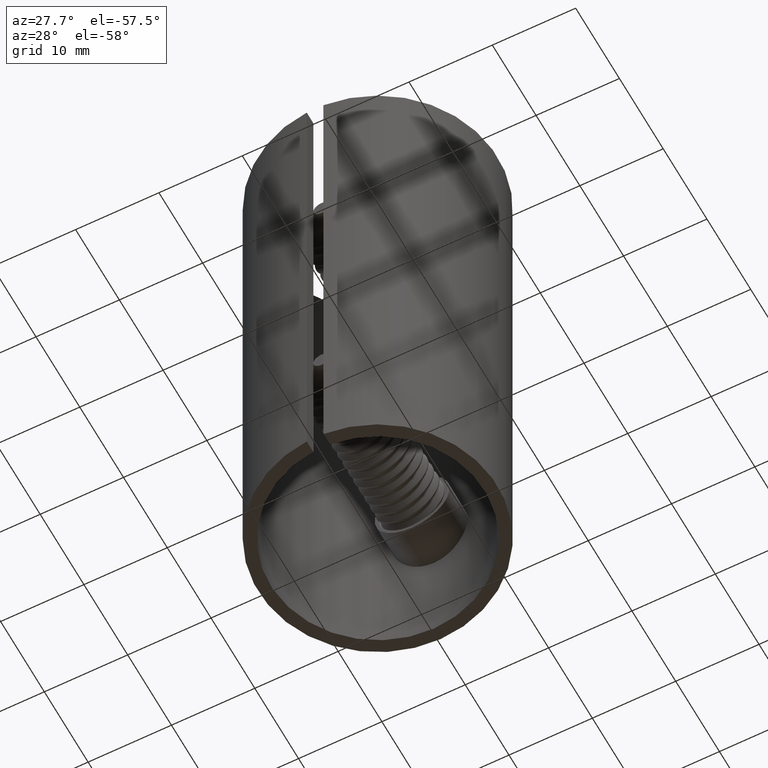
[diagram: clean part render]
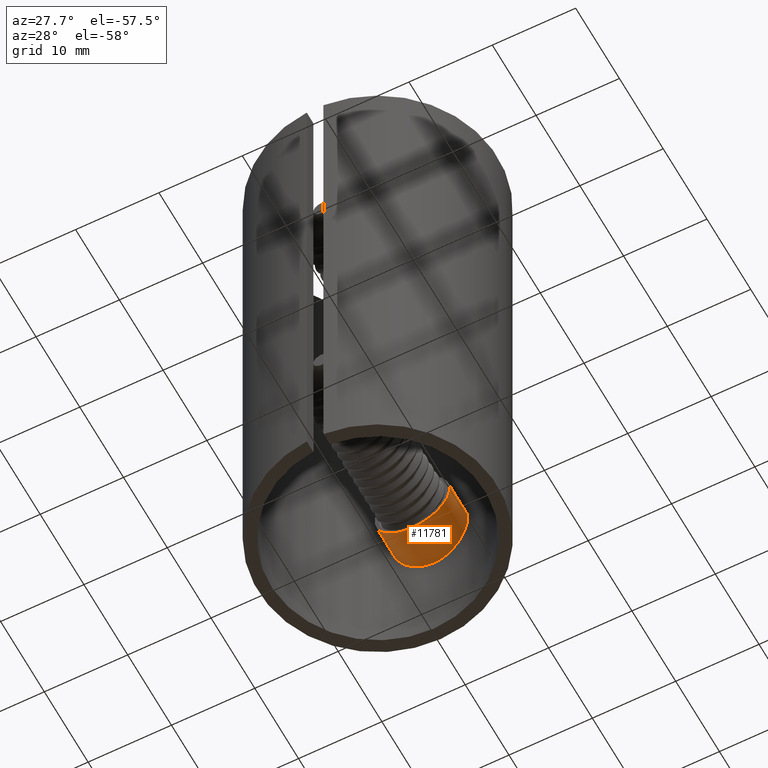
[diagram: same view with one face highlighted and labeled with its STEP entity id]
A machine part, auxiliary view. The second image highlights one B-rep face of the part: STEP entity #11781.
In plain terms, the highlighted cylindrical surface (bore or boss wall) has radius 4.5 mm, axis along (0, 1, 0).
Its self-contained STEP definition (entity closure, byte-faithful):
#11 = CARTESIAN_POINT ( 'NONE',  ( 1.459417600245676461, 12.76977977722523327, -19.26686551012178938 ) ) ;
#59 = CARTESIAN_POINT ( 'NONE',  ( 0.5942434501444450179, 12.83952564303275246, -10.52966726607308168 ) ) ;
#106 = CARTESIAN_POINT ( 'NONE',  ( 2.750116630756271885, 12.55471033491720867, -18.57386295907109641 ) ) ;
#157 = CARTESIAN_POINT ( 'NONE',  ( 3.388448847047173196, 12.39703506239546904, -17.97555663379015556 ) ) ;
#386 = CARTESIAN_POINT ( 'NONE',  ( -1.027462442360445927, 12.80967498977027574, -10.61639308532924630 ) ) ;
#1149 = CARTESIAN_POINT ( 'NONE',  ( -3.900602301138434758, 12.24485714984464124, -17.26277865684465240 ) ) ;
#1194 = CARTESIAN_POINT ( 'NONE',  ( 4.259931524506673561, 12.12343151593867674, -13.54230917035954462 ) ) ;
#1242 = CARTESIAN_POINT ( 'NONE',  ( 1.178492487927551791, 12.79918485197896949, -19.35312108340673376 ) ) ;
#1329 = CARTESIAN_POINT ( 'NONE',  ( -3.388589162989591230, 12.39698685252220223, -12.02467437765965208 ) ) ;
#1418 = CARTESIAN_POINT ( 'NONE',  ( -1.170503917345799394, 12.79737082501316081, -10.65237381568734243 ) ) ;
#1465 = CARTESIAN_POINT ( 'NONE',  ( -0.2998537014708396176, 12.84999999999999609, -10.49999999999999112 ) ) ;
#1598 = ORIENTED_EDGE ( 'NONE', *, *, #3736, .F. ) ;
#2193 = CARTESIAN_POINT ( 'NONE',  ( -1.175390473254030788, 12.79947489915553227, -19.35397160993088761 ) ) ;
#2242 = CARTESIAN_POINT ( 'NONE',  ( -4.040858867401452059, 12.19870397991943811, -17.00222393640586560 ) ) ;
#2285 = CARTESIAN_POINT ( 'NONE',  ( 0.000000000000000000, 12.85000000000000142, -10.49999999999999467 ) ) ;
#2331 = CARTESIAN_POINT ( 'NONE',  ( 0.5951562172557860464, 12.83953918551173246, -19.47037993776408982 ) ) ;
#2377 = CARTESIAN_POINT ( 'NONE',  ( 2.974827598252517635, 12.50273828759096162, -18.38908890863356405 ) ) ;
#2465 = CARTESIAN_POINT ( 'NONE',  ( 0.000000000000000000, 7.849999999999999645, -15.00000000000000000 ) ) ;
#2553 = CARTESIAN_POINT ( 'NONE',  ( 0.000000000000000000, 12.85000000000000142, -10.49999999999999467 ) ) ;
#2579 = CIRCLE ( 'NONE', #12234, 4.500000000000000888 ) ;
#2757 = CARTESIAN_POINT ( 'NONE',  ( 0.000000000000000000, 12.84999999999999964, -10.49999999999999822 ) ) ;
#3283 = CARTESIAN_POINT ( 'NONE',  ( 2.264087476249609487, 12.65139521856498028, -18.89994177301050371 ) ) ;
#3337 = CARTESIAN_POINT ( 'NONE',  ( 2.977528894992795827, 12.50207591793815354, -11.61340633448052628 ) ) ;
#3435 = CARTESIAN_POINT ( 'NONE',  ( -0.2936521661922865678, 12.85003901365469581, -19.50011140566541101 ) ) ;
#3476 = CARTESIAN_POINT ( 'NONE',  ( -2.263515933239456324, 12.65149265066590623, -18.90024872559420999 ) ) ;
#3521 = CARTESIAN_POINT ( 'NONE',  ( -0.5942405576884898233, 12.83951665038944689, -10.52969433138628474 ) ) ;
#3736 = EDGE_CURVE ( 'NONE', #11400, #11400, #2579, .T. ) ;
#4301 = EDGE_LOOP ( 'NONE', ( #1598 ) ) ;
#4423 = CARTESIAN_POINT ( 'NONE',  ( 2.003796814969636131, 12.69577293884899838, -10.95999453175075011 ) ) ;
#4471 = CARTESIAN_POINT ( 'NONE',  ( 4.268683903363965193, 12.12086395232515379, -16.45476960763259200 ) ) ;
#4516 = CARTESIAN_POINT ( 'NONE',  ( 3.574339516876450684, 12.34407234909582129, -12.25020815487321180 ) ) ;
#4558 = CARTESIAN_POINT ( 'NONE',  ( -2.749066532404903285, 12.55493543871468098, -18.57464371678344506 ) ) ;
#4606 = DIRECTION ( 'NONE',  ( -0.000000000000000000, 1.000000000000000000, 0.000000000000000000 ) ) ;
#4699 = CARTESIAN_POINT ( 'NONE',  ( -2.003385134824223091, 12.69584867172076414, -10.95975314219120378 ) ) ;
#5124 = CYLINDRICAL_SURFACE ( 'NONE', #7406, 4.500000000000000888 ) ;
#5422 = CARTESIAN_POINT ( 'NONE',  ( 2.748806839186740181, 12.55501083933705786, -11.42507044534077210 ) ) ;
#5469 = CARTESIAN_POINT ( 'NONE',  ( 2.000976343615605835, 12.69619112029383778, -19.04130358741638318 ) ) ;
#5523 = CARTESIAN_POINT ( 'NONE',  ( -4.500013225231301206, 12.03629432063468840, -15.29636560737126594 ) ) ;
#5606 = CARTESIAN_POINT ( 'NONE',  ( 4.210054362942324602, 12.14090115662861713, -13.40411188770877260 ) ) ;
#5648 = CARTESIAN_POINT ( 'NONE',  ( -2.260672423410575949, 12.65200191724202661, -11.09810854074333619 ) ) ;
#5694 = DIRECTION ( 'NONE',  ( 0.000000000000000000, 0.000000000000000000, 1.000000000000000000 ) ) ;
#5738 = CARTESIAN_POINT ( 'NONE',  ( -4.266950575948530222, 12.12146225847692271, -13.54080575960905364 ) ) ;
#6167 = CARTESIAN_POINT ( 'NONE',  ( 0.000000000000000000, 7.849999999999999645, -15.00000000000000000 ) ) ;
#6485 = CARTESIAN_POINT ( 'NONE',  ( 1.459798405818399480, 12.76976275444704356, -10.73317044240852525 ) ) ;
#6538 = CARTESIAN_POINT ( 'NONE',  ( -3.390152600494109603, 12.39658854551593237, -17.97377161891077080 ) ) ;
#6582 = CARTESIAN_POINT ( 'NONE',  ( -4.499986765813623002, 12.03630421299253506, -14.70323290615132095 ) ) ;
#6679 = CARTESIAN_POINT ( 'NONE',  ( 3.576564252931357046, 12.34339909841977345, -17.74651861065074243 ) ) ;
#6918 = CARTESIAN_POINT ( 'NONE',  ( -3.901294681090462735, 12.24466037682363151, -12.73805524251506860 ) ) ;
#7188 = ORIENTED_EDGE ( 'NONE', *, *, #11753, .F. ) ;
#7219 = CARTESIAN_POINT ( 'NONE',  ( 0.000000000000000000, 7.849999999999999645, -19.50000000000000000 ) ) ;
#7406 = AXIS2_PLACEMENT_3D ( 'NONE', #2465, #4606, #5694 ) ;
#7652 = CARTESIAN_POINT ( 'NONE',  ( -3.576295978754301164, 12.34347325529138928, -17.74681135753148453 ) ) ;
#7703 = CARTESIAN_POINT ( 'NONE',  ( -1.456947527732798564, 12.77008219614835127, -19.26777700133389004 ) ) ;
#7754 = CARTESIAN_POINT ( 'NONE',  ( 3.903129698988899055, 12.24408443675915059, -12.74105406742410018 ) ) ;
#7792 = CARTESIAN_POINT ( 'NONE',  ( 4.041175937900114867, 12.19858809759393736, -12.99885945959164602 ) ) ;
#7926 = CARTESIAN_POINT ( 'NONE',  ( -4.041305201827307236, 12.19854773187987362, -12.99900841719382250 ) ) ;
#7973 = CARTESIAN_POINT ( 'NONE',  ( -1.594643130052881830, 12.75141245749631835, -10.78942997262932657 ) ) ;
#8347 = FACE_OUTER_BOUND ( 'NONE', #13218, .T. ) ;
#8759 = CARTESIAN_POINT ( 'NONE',  ( 4.040746509117592922, 12.19874472503904173, -17.00259444900460437 ) ) ;
#8800 = CARTESIAN_POINT ( 'NONE',  ( -4.470942103114222022, 12.04728265998305936, -14.40930938373942816 ) ) ;
#8846 = CARTESIAN_POINT ( 'NONE',  ( 4.346461985916851845, 12.09267863296302892, -13.82520327150464823 ) ) ;
#8891 = CARTESIAN_POINT ( 'NONE',  ( 2.261405972524804575, 12.65188836666131422, -11.09844859224372371 ) ) ;
#9707 = DIRECTION ( 'NONE',  ( 0.000000000000000000, -1.000000000000000000, 0.000000000000000000 ) ) ;
#9797 = CARTESIAN_POINT ( 'NONE',  ( 4.470628180573605448, 12.04739951172159529, -14.40709048105293810 ) ) ;
#9842 = CARTESIAN_POINT ( 'NONE',  ( -4.268120659306169351, 12.12105874969522112, -16.45622358014743369 ) ) ;
#9938 = CARTESIAN_POINT ( 'NONE',  ( 4.383199490805063547, 12.07936360305452972, -13.97064256428806317 ) ) ;
#9986 = CARTESIAN_POINT ( 'NONE',  ( -2.000397779922054475, 12.69630277352563574, -19.04166121214583285 ) ) ;
#10028 = CARTESIAN_POINT ( 'NONE',  ( -2.746330165624910169, 12.55553515152753796, -11.42326022931946561 ) ) ;
#10211 = CARTESIAN_POINT ( 'NONE',  ( -4.354501246870380093, 12.08985780189047965, -13.82673209174459217 ) ) ;
#10659 = DIRECTION ( 'NONE',  ( 0.000000000000000000, 0.000000000000000000, -1.000000000000000000 ) ) ;
#10895 = CARTESIAN_POINT ( 'NONE',  ( -2.974371408899446401, 12.50286594918842908, -18.38962638324604981 ) ) ;
#10942 = CARTESIAN_POINT ( 'NONE',  ( -4.353816759373282608, 12.09010343652837882, -16.17524505648996325 ) ) ;
#10992 = CARTESIAN_POINT ( 'NONE',  ( 4.354449222874616332, 12.08987525031874632, -16.17303499872890882 ) ) ;
#11033 = CARTESIAN_POINT ( 'NONE',  ( 4.499789006491782928, 12.03637814906355707, -14.70065075333660332 ) ) ;
#11078 = FACE_OUTER_BOUND ( 'NONE', #4301, .T. ) ;
#11079 = CARTESIAN_POINT ( 'NONE',  ( -0.5916240854138898886, 12.83970721629925116, -19.47086037427458649 ) ) ;
#11209 = CARTESIAN_POINT ( 'NONE',  ( -3.573706146599116007, 12.34424693167708220, -12.24952392259485912 ) ) ;
#11400 = VERTEX_POINT ( 'NONE', #7219 ) ;
#11753 = EDGE_CURVE ( 'NONE', #13447, #13447, #13169, .T. ) ;
#11781 = ADVANCED_FACE ( 'NONE', ( #8347, #11078 ), #5124, .T. ) ;
#11992 = CARTESIAN_POINT ( 'NONE',  ( 4.470417793364290127, 12.04747593297596531, -15.59380459379176642 ) ) ;
#12037 = CARTESIAN_POINT ( 'NONE',  ( -4.469937448796804880, 12.04765457190729805, -15.59714363502232359 ) ) ;
#12087 = CARTESIAN_POINT ( 'NONE',  ( 0.2998537014708438364, 12.85000000000000675, -10.49999999999999645 ) ) ;
#12131 = CARTESIAN_POINT ( 'NONE',  ( 3.388936945594447359, 12.39688214662021615, -12.02513843101253244 ) ) ;
#12234 = AXIS2_PLACEMENT_3D ( 'NONE', #6167, #9707, #10659 ) ;
#12314 = CARTESIAN_POINT ( 'NONE',  ( -1.453827011512828893, 12.76828753098925873, -10.73874198391618506 ) ) ;
#13028 = CARTESIAN_POINT ( 'NONE',  ( 3.901364096783679347, 12.24461805621326249, -17.26153366508761877 ) ) ;
#13077 = CARTESIAN_POINT ( 'NONE',  ( 0.2970567151572457987, 12.84996076084036609, -19.49988795039269718 ) ) ;
#13124 = CARTESIAN_POINT ( 'NONE',  ( 1.172678427514688870, 12.79966285969192974, -10.64548219251548566 ) ) ;
#13169 = B_SPLINE_CURVE_WITH_KNOTS ( 'NONE', 3,
 ( #2285, #12087, #59, #13124, #6485, #4423, #8891, #5422, #3337, #12131, #4516, #7754, #7792, #5606, #1194, #8846, #9938, #9797, #11033, #13215, #11992, #10992, #4471, #8759, #13028, #6679, #157, #2377, #106, #3283, #5469, #11, #1242, #2331, #13077, #3435, #11079, #2193, #7703, #9986, #3476, #4558, #10895, #6538, #7652, #1149, #2242, #9842, #10942, #12037, #5523, #6582, #8800, #10211, #5738, #7926, #6918, #11209, #1329, #13259, #10028, #5648, #4699, #7973, #12314, #1418, #386, #3521, #1465, #2553 ),
 .UNSPECIFIED., .T., .F.,
 ( 4, 2, 2, 2, 2, 2, 2, 2, 2, 2, 2, 2, 2, 2, 2, 2, 2, 2, 2, 2, 2, 2, 2, 2, 2, 2, 2, 2, 2, 2, 2, 2, 2, 2, 4 ),
 ( 0.000000000000000000, 0.0008862935315747392162, 0.001772587063149478432, 0.002658880594724216673, 0.003545174126298955130, 0.004431467657873694455, 0.005317761189448433345, 0.005760907955235803658, 0.006204054721023173104, 0.007090348252597905923, 0.007976641784172644814, 0.008862935315747378501, 0.009749228847322112188, 0.01063552237889684414, 0.01152181591047157956, 0.01240810944204631151, 0.01329440297362104347, 0.01418069650519577715, 0.01506699003677050910, 0.01595328356834524106, 0.01683957709991997648, 0.01772587063149470843, 0.01861216416306944038, 0.01949845769464417233, 0.02038475122621890429, 0.02127104475779363277, 0.02215733828936836125, 0.02304363182094308973, 0.02392992535251781475, 0.02481621888409253976, 0.02570251241566726824, 0.02658880594724199325, 0.02703195271302935576, 0.02747509947881672174, 0.02836139301039144675 ),
 .UNSPECIFIED. ) ;
#13215 = CARTESIAN_POINT ( 'NONE',  ( 4.500208733901750691, 12.03622122601248812, -15.29297171490887486 ) ) ;
#13218 = EDGE_LOOP ( 'NONE', ( #7188 ) ) ;
#13259 = CARTESIAN_POINT ( 'NONE',  ( -2.976084587506350410, 12.50242936653297043, -11.61207739130708028 ) ) ;
#13447 = VERTEX_POINT ( 'NONE', #2757 ) ;